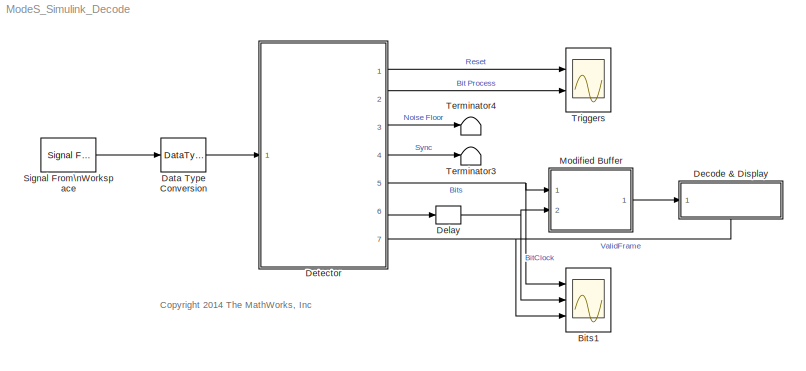
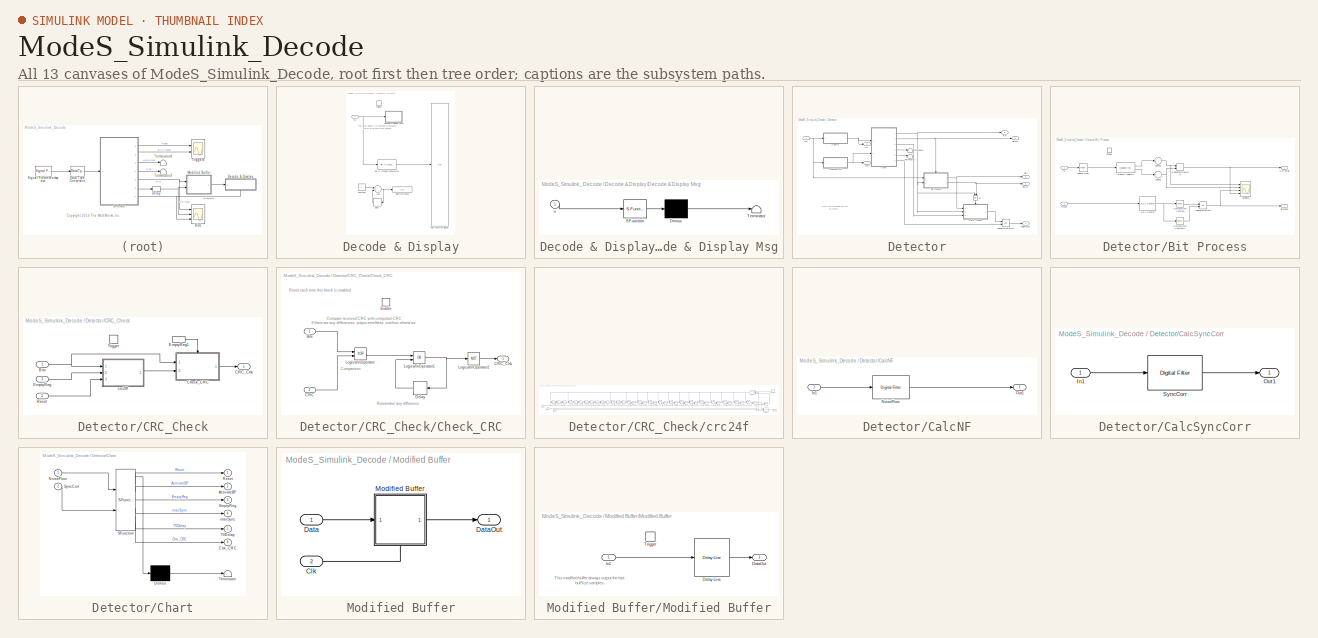
[diagram: thumbnail index - all 13 canvases of the model, root first then tree order]
MODEL ModeS_Simulink_Decode
KIND model
CONFIG PreLoadFcn = load data_Yb\nDataIn = Yb_with_time(:,2);\nWL=14;\n
BLOCK [Scope] Bits1
  Floating = off
  NumInputPorts = 3
  Ports = [3]
  SID = 125
  ScopeSpecificationString = C++SS(StrPVP('Location','[451, 237, 1357, 757]'),StrPVP('Open','off'),StrPVP('ZoomMode','xonly'),MxPVP('AxesTitles',54,'struct(''axes1'',''%<SignalLabel>'',''axes2'',''%<SignalLabel>'',''axes3'',''%<SignalLabel>'')'),MxPVP('ScopeGraphics',57,'struct(''FigureColor'',''[0.501960784313725 0.501960784313725 0.501960784313725]'',''AxesColor'',''[0 0 0]'',''AxesTickColor'',''[1 1 1]'',''LineColors'',''[...<+433ch>
BLOCK [DataTypeConversion] Data Type Conversion
  LockScale = on
  OutDataTypeStr = double
  RndMeth = Floor
  SID = 147
  SaturateOnIntegerOverflow = off
BLOCK [SubSystem] Decode & Display
  Ports = [1, 0, 0, 1]
  RequestExecContextInheritance = off
  SID = 233
BLOCK [Sum] Decode & Display/Add
  InputSameDT = off
  OutDataTypeStr = Inherit: Inherit via internal rule
  Ports = [2, 1]
  SID = 294
  SaturateOnIntegerOverflow = off
BLOCK [Reference] Decode & Display/Bit to Integer\nConverter  REF=commutil2/Bit to Integer\nConverter
  Ports = [1, 1]
  SID = 305
  SourceBlock = commutil2/Bit to Integer\nConverter
  SourceProductBaseCode = CM
  SourceProductName = Communications Toolbox
  SourceType = Bit to Integer Converter
  bitOrder = MSB first
  nbits = 4
  outDtype = Inherit via internal rule
  outDtypeSigned = Inherit via internal rule
  signedOutputValues = Unsigned
BLOCK [Constant] Decode & Display/Constant
  SID = 296
BLOCK [SubSystem] Decode & Display/Decode & Display Msg
  ErrorFcn = Stateflow.Translate.translate
  PermitHierarchicalResolution = ExplicitOnly
  Ports = [1]
  RequestExecContextInheritance = off
  SFBlockType = MATLAB Function
  SID = 300
  TreatAsAtomicUnit = on
BLOCK [Demux] Decode & Display/Decode & Display Msg/ Demux 
  Outputs = 1
  Ports = [1, 1]
  SID = 300::33
BLOCK [S-Function] Decode & Display/Decode & Display Msg/ SFunction 
  EnableBusSupport = off
  FunctionName = sf_sfun
  PortCounts = [1 1]
  Ports = [1, 1]
  SFcnIsStateOwnerBlock = off
  SFunctionDeploymentMode = off
  SID = 300::32
  Tag = Stateflow S-Function 2
BLOCK [Terminator] Decode & Display/Decode & Display Msg/ Terminator 
  SID = 300::34
BLOCK [Inport] Decode & Display/Decode & Display Msg/u
  IconDisplay = Port number
  SID = 300::1
BLOCK [Delay] Decode & Display/Delay
  DelayLength = 1
  InputPortMap = u0
  Ports = [1, 1]
  SID = 295
BLOCK [Display] Decode & Display/HEX raw msg display
  Decimation = 1
  Format = hex (Stored Integer)
  Ports = [1]
  SID = 306
BLOCK [Inport] Decode & Display/In1
  IconDisplay = Port number
  SID = 234
BLOCK [TriggerPort] Decode & Display/Trigger
  Ports = []
  SID = 237
  StatesWhenEnabling = held
  VariantControl = Variant
BLOCK [Display] Decode & Display/Valid Msg Count
  Decimation = 1
  Ports = [1]
  SID = 297
BLOCK [Delay] Delay
  DelayLength = 1
  InputPortMap = u0
  Ports = [1, 1]
  SID = 304
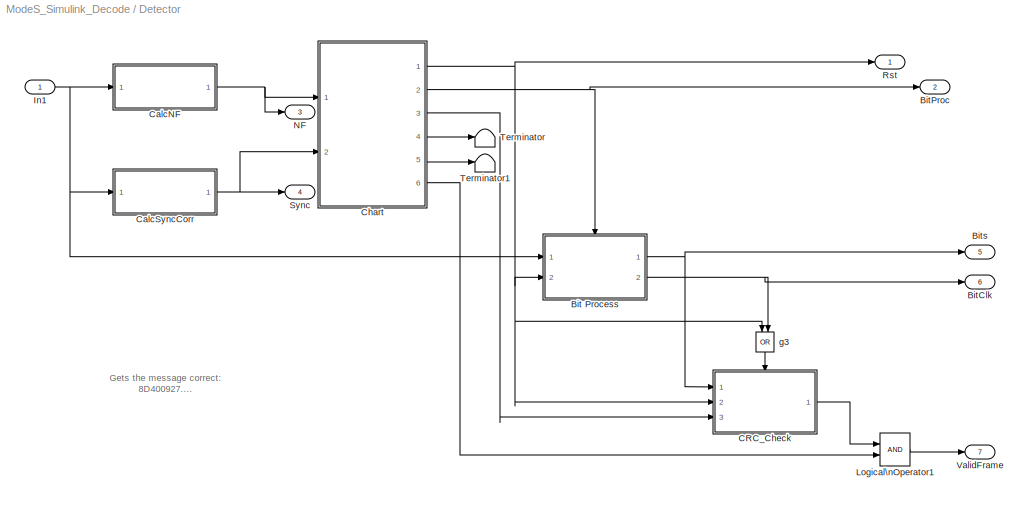
BLOCK [SubSystem] Detector
  Ports = [1, 7]
  RequestExecContextInheritance = off
  SID = 167
BLOCK [SubSystem] Detector/Bit Process
  Ports = [2, 2, 1]
  RequestExecContextInheritance = off
  SID = 103
  TreatAsAtomicUnit = on
BLOCK [Outport] Detector/Bit Process/BitTrigger
  IconDisplay = Port number
  InitialOutput = 0
  Port = 2
  SID = 132
BLOCK [Reference] Detector/Bit Process/Compare\nTo Constant  REF=simulink/Logic and Bit\nOperations/Compare\nTo Constant
  OutDataTypeStr = boolean
  Ports = [1, 1]
  SID = 107
  SourceBlock = simulink/Logic and Bit\nOperations/Compare\nTo Constant
  SourceProductBaseCode = SL
  SourceProductName = Simulink
  SourceType = Compare To Constant
  ZeroCross = on
  const = 12
  relop = ==
BLOCK [Reference] Detector/Bit Process/Compare\nTo Constant1  REF=simulink/Logic and Bit\nOperations/Compare\nTo Constant
  OutDataTypeStr = boolean
  Ports = [1, 1]
  SID = 108
  SourceBlock = simulink/Logic and Bit\nOperations/Compare\nTo Constant
  SourceProductBaseCode = SL
  SourceProductName = Simulink
  SourceType = Compare To Constant
  ZeroCross = on
  const = 25
  relop = ==
BLOCK [Outport] Detector/Bit Process/CurrentBit
  IconDisplay = Port number
  InitialOutput = 0
  SID = 120
BLOCK [EnablePort] Detector/Bit Process/Enable
  Ports = []
  SID = 106
BLOCK [Reference] Detector/Bit Process/HDL Counter  REF=hdlsllib/HDL Operations/HDL Counter
  CountDataType = Unsigned
  CountDirPort = off
  CountEnbPort = off
  CountFracLen = 0
  CountFrom = 1
  CountFromType = Initial value
  CountInit = 1
  CountLoadPort = off
  CountMax = 25
  CountResetPort = on
  CountSampTime = 1
  CountStep = 1
  CountType = Count limited
  CountWordLen = 8
  Ports = [1, 1]
  SID = 109
  SourceBlock = hdlsllib/HDL Operations/HDL Counter
  SourceProductBaseCode = SL
  SourceProductName = Simulink
  SourceType = HDL Counter
BLOCK [Inport] Detector/Bit Process/In1
  IconDisplay = Port number
  SID = 104
BLOCK [Sum] Detector/Bit Process/Logical0
  AccumDataTypeStr = double
  InputSameDT = off
  Inputs = +
  OutDataTypeStr = Inherit: Same as accumulator
  Ports = [1, 1]
  SID = 111
  SaturateOnIntegerOverflow = off
BLOCK [Sum] Detector/Bit Process/Logical1
  AccumDataTypeStr = double
  InputSameDT = off
  Inputs = +
  OutDataTypeStr = Inherit: Same as accumulator
  Ports = [1, 1]
  SID = 112
  SaturateOnIntegerOverflow = off
BLOCK [Logic] Detector/Bit Process/Logical\nOperator
  AllPortsSameDT = off
  Operator = OR
  OutDataTypeStr = boolean
  Ports = [2, 1]
  SID = 110
BLOCK [Reference] Detector/Bit Process/Multiport\nSelector  REF=dspindex/Multiport\nSelector
  Ports = [1, 2]
  SID = 113
  SourceBlock = dspindex/Multiport\nSelector
  SourceProductBaseCode = DS
  SourceProductName = DSP System Toolbox
  SourceType = Multiport Selector
  idxCellArray = { 1:6,7:12}
  idxErrMode = Clip Index
  rowsOrCols = Rows
BLOCK [RelationalOperator] Detector/Bit Process/Relational\nOperator
  InputSameDT = off
  Operator = >
  OutDataTypeStr = boolean
  Ports = [2, 1]
  SID = 114
BLOCK [Inport] Detector/Bit Process/Reset
  IconDisplay = Port number
  Port = 2
  SID = 105
BLOCK [Reference] Detector/Bit Process/Tapped Delay  REF=simulink/Discrete/Tapped Delay
  DelayOrder = Oldest
  NumDelays = 12
  Ports = [1, 1]
  SID = 119
  SourceBlock = simulink/Discrete/Tapped Delay
  SourceProductBaseCode = SL
  SourceProductName = Simulink
  SourceType = Tapped Delay Line
  includeCurrent = on
  samptime = 1
  vinit = 0.0
BLOCK [Scope] Detector/Bit Process/decisions
  Floating = off
  NumInputPorts = 4
  Ports = [4]
  SID = 138
  ScopeSpecificationString = C++SS(StrPVP('Location','[49, 532, 1722, 1128]'),StrPVP('Open','off'),StrPVP('ZoomMode','xonly'),MxPVP('AxesTitles',54,'struct(''axes1'',''%<SignalLabel>'',''axes2'',''%<SignalLabel>'',''axes3'',''%<SignalLabel>'',''axes4'',''%<SignalLabel>'')'),MxPVP('ScopeGraphics',57,'struct(''FigureColor'',''[0.5 0.5 0.5]'',''AxesColor'',''[0 0 0]'',''AxesTickColor'',''[1 1 1]'',''LineColors'',''[1 1 0;1 0 1;0...<+413ch>
BLOCK [Outport] Detector/BitClk
  IconDisplay = Port number
  Port = 6
  SID = 400
BLOCK [Outport] Detector/BitProc
  IconDisplay = Port number
  Port = 2
  SID = 170
BLOCK [Outport] Detector/Bits
  IconDisplay = Port number
  Port = 5
  SID = 399
BLOCK [SubSystem] Detector/CRC_Check
  Ports = [3, 1, 0, 1]
  RequestExecContextInheritance = off
  SID = 19
BLOCK [Inport] Detector/CRC_Check/Bits
  IconDisplay = Port number
  SID = 20
BLOCK [Outport] Detector/CRC_Check/CRC_Chk
  IconDisplay = Port number
  SID = 124
BLOCK [SubSystem] Detector/CRC_Check/Check_CRC
  Ports = [2, 1, 1]
  RequestExecContextInheritance = off
  SID = 315
  TreatAsAtomicUnit = on
BLOCK [Inport] Detector/CRC_Check/Check_CRC/Bits
  IconDisplay = Port number
  SID = 316
BLOCK [Inport] Detector/CRC_Check/Check_CRC/CRC
  IconDisplay = Port number
  Port = 2
  SID = 317
BLOCK [Outport] Detector/CRC_Check/Check_CRC/CRC_Chk
  IconDisplay = Port number
  InitialOutput = 0
  SID = 324
BLOCK [Delay] Detector/CRC_Check/Check_CRC/Delay
  DelayLength = 1
  InputPortMap = u0
  Ports = [1, 1]
  SID = 320
BLOCK [EnablePort] Detector/CRC_Check/Check_CRC/Enable
  Ports = []
  SID = 318
  StatesWhenEnabling = reset
BLOCK [Logic] Detector/CRC_Check/Check_CRC/Logical\nOperator
  AllPortsSameDT = off
  Operator = XOR
  OutDataTypeStr = boolean
  Ports = [2, 1]
  SID = 321
BLOCK [Logic] Detector/CRC_Check/Check_CRC/Logical\nOperator1
  AllPortsSameDT = off
  Operator = OR
  OutDataTypeStr = boolean
  Ports = [2, 1]
  SID = 322
BLOCK [Logic] Detector/CRC_Check/Check_CRC/Logical\nOperator2
  AllPortsSameDT = off
  Operator = NOT
  OutDataTypeStr = boolean
  Ports = [1, 1]
  SID = 323
BLOCK [Inport] Detector/CRC_Check/EmptyReg
  IconDisplay = Port number
  Port = 3
  SID = 22
BLOCK [InportShadow] Detector/CRC_Check/EmptyReg1
  IconDisplay = Port number
  Port = 3
  SID = 329
BLOCK [Inport] Detector/CRC_Check/Reset
  IconDisplay = Port number
  Port = 2
  SID = 23
BLOCK [TriggerPort] Detector/CRC_Check/Trigger
  Ports = []
  SID = 131
  StatesWhenEnabling = held
  VariantControl = Variant
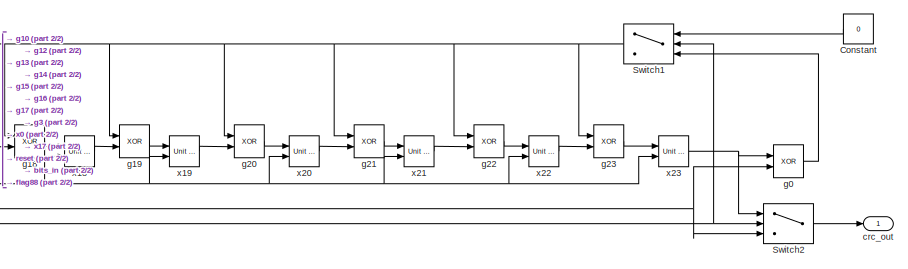
[diagram: Detector/CRC_Check/crc24f - part 1/2, right side, full height]
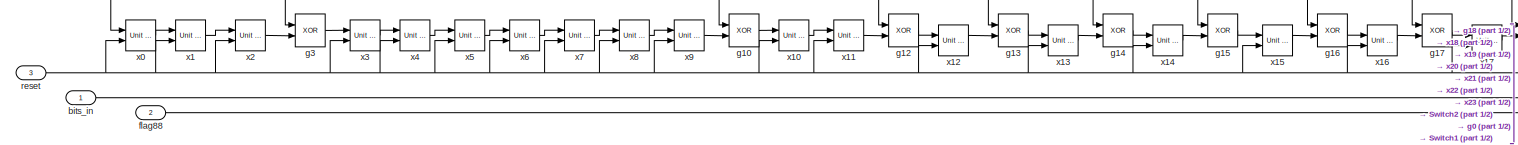
[diagram: Detector/CRC_Check/crc24f - part 2/2, bottom left region]
BLOCK [SubSystem] Detector/CRC_Check/crc24f
  Ports = [3, 1]
  RequestExecContextInheritance = off
  SID = 27
BLOCK [Constant] Detector/CRC_Check/crc24f/Constant
  OutDataTypeStr = boolean
  SID = 30
  SampleTime = -1
  Value = 0
BLOCK [Switch] Detector/CRC_Check/crc24f/Switch1
  Criteria = u2 > Threshold
  InputSameDT = off
  SID = 31
  SaturateOnIntegerOverflow = off
  Threshold = 0.5
BLOCK [Switch] Detector/CRC_Check/crc24f/Switch2
  Criteria = u2 > Threshold
  InputSameDT = off
  SID = 32
  SaturateOnIntegerOverflow = off
  Threshold = 0.5
BLOCK [Inport] Detector/CRC_Check/crc24f/bits_in
  IconDisplay = Port number
  SID = 28
BLOCK [Outport] Detector/CRC_Check/crc24f/crc_out
  IconDisplay = Port number
  SID = 72
BLOCK [Inport] Detector/CRC_Check/crc24f/flag88
  IconDisplay = Port number
  Port = 2
  SID = 29
BLOCK [Logic] Detector/CRC_Check/crc24f/g0
  AllPortsSameDT = off
  Operator = XOR
  OutDataTypeStr = boolean
  Ports = [2, 1]
  SID = 33
BLOCK [Logic] Detector/CRC_Check/crc24f/g10
  AllPortsSameDT = off
  Operator = XOR
  OutDataTypeStr = boolean
  Ports = [2, 1]
  SID = 34
BLOCK [Logic] Detector/CRC_Check/crc24f/g12
  AllPortsSameDT = off
  Operator = XOR
  OutDataTypeStr = boolean
  Ports = [2, 1]
  SID = 35
BLOCK [Logic] Detector/CRC_Check/crc24f/g13
  AllPortsSameDT = off
  Operator = XOR
  OutDataTypeStr = boolean
  Ports = [2, 1]
  SID = 36
BLOCK [Logic] Detector/CRC_Check/crc24f/g14
  AllPortsSameDT = off
  Operator = XOR
  OutDataTypeStr = boolean
  Ports = [2, 1]
  SID = 37
BLOCK [Logic] Detector/CRC_Check/crc24f/g15
  AllPortsSameDT = off
  Operator = XOR
  OutDataTypeStr = boolean
  Ports = [2, 1]
  SID = 38
BLOCK [Logic] Detector/CRC_Check/crc24f/g16
  AllPortsSameDT = off
  Operator = XOR
  OutDataTypeStr = boolean
  Ports = [2, 1]
  SID = 39
BLOCK [Logic] Detector/CRC_Check/crc24f/g17
  AllPortsSameDT = off
  Operator = XOR
  OutDataTypeStr = boolean
  Ports = [2, 1]
  SID = 40
BLOCK [Logic] Detector/CRC_Check/crc24f/g18
  AllPortsSameDT = off
  Operator = XOR
  OutDataTypeStr = boolean
  Ports = [2, 1]
  SID = 41
BLOCK [Logic] Detector/CRC_Check/crc24f/g19
  AllPortsSameDT = off
  Operator = XOR
  OutDataTypeStr = boolean
  Ports = [2, 1]
  SID = 42
BLOCK [Logic] Detector/CRC_Check/crc24f/g20
  AllPortsSameDT = off
  Operator = XOR
  OutDataTypeStr = boolean
  Ports = [2, 1]
  SID = 43
BLOCK [Logic] Detector/CRC_Check/crc24f/g21
  AllPortsSameDT = off
  Operator = XOR
  OutDataTypeStr = boolean
  Ports = [2, 1]
  SID = 44
BLOCK [Logic] Detector/CRC_Check/crc24f/g22
  AllPortsSameDT = off
  Operator = XOR
  OutDataTypeStr = boolean
  Ports = [2, 1]
  SID = 45
BLOCK [Logic] Detector/CRC_Check/crc24f/g23
  AllPortsSameDT = off
  Operator = XOR
  OutDataTypeStr = boolean
  Ports = [2, 1]
  SID = 46
BLOCK [Logic] Detector/CRC_Check/crc24f/g3
  AllPortsSameDT = off
  Operator = XOR
  OutDataTypeStr = boolean
  Ports = [2, 1]
  SID = 47
BLOCK [Inport] Detector/CRC_Check/crc24f/reset
  IconDisplay = Port number
  Port = 3
  SID = 73
BLOCK [Reference] Detector/CRC_Check/crc24f/x0  REF=simulink_need_slupdate/Unit Delay\nResettable
  Ports = [2, 1]
  SID = 74
  SourceBlock = simulink_need_slupdate/Unit Delay\nResettable
  SourceProductBaseCode = SL
  SourceProductName = Simulink
  SourceType = Unit Delay Resettable
  tsamp = -1
  vinit = 0.0
BLOCK [Reference] Detector/CRC_Check/crc24f/x1  REF=simulink_need_slupdate/Unit Delay\nResettable
  Ports = [2, 1]
  SID = 75
  SourceBlock = simulink_need_slupdate/Unit Delay\nResettable
  SourceProductBaseCode = SL
  SourceProductName = Simulink
  SourceType = Unit Delay Resettable
  tsamp = -1
  vinit = 0.0
BLOCK [Reference] Detector/CRC_Check/crc24f/x10  REF=simulink_need_slupdate/Unit Delay\nResettable
  Ports = [2, 1]
  SID = 84
  SourceBlock = simulink_need_slupdate/Unit Delay\nResettable
  SourceProductBaseCode = SL
  SourceProductName = Simulink
  SourceType = Unit Delay Resettable
  tsamp = -1
  vinit = 0.0
BLOCK [Reference] Detector/CRC_Check/crc24f/x11  REF=simulink_need_slupdate/Unit Delay\nResettable
  Ports = [2, 1]
  SID = 85
  SourceBlock = simulink_need_slupdate/Unit Delay\nResettable
  SourceProductBaseCode = SL
  SourceProductName = Simulink
  SourceType = Unit Delay Resettable
  tsamp = -1
  vinit = 0.0
BLOCK [Reference] Detector/CRC_Check/crc24f/x12  REF=simulink_need_slupdate/Unit Delay\nResettable
  Ports = [2, 1]
  SID = 86
  SourceBlock = simulink_need_slupdate/Unit Delay\nResettable
  SourceProductBaseCode = SL
  SourceProductName = Simulink
  SourceType = Unit Delay Resettable
  tsamp = -1
  vinit = 0.0
BLOCK [Reference] Detector/CRC_Check/crc24f/x13  REF=simulink_need_slupdate/Unit Delay\nResettable
  Ports = [2, 1]
  SID = 87
  SourceBlock = simulink_need_slupdate/Unit Delay\nResettable
  SourceProductBaseCode = SL
  SourceProductName = Simulink
  SourceType = Unit Delay Resettable
  tsamp = -1
  vinit = 0.0
BLOCK [Reference] Detector/CRC_Check/crc24f/x14  REF=simulink_need_slupdate/Unit Delay\nResettable
  Ports = [2, 1]
  SID = 88
  SourceBlock = simulink_need_slupdate/Unit Delay\nResettable
  SourceProductBaseCode = SL
  SourceProductName = Simulink
  SourceType = Unit Delay Resettable
  tsamp = -1
  vinit = 0.0
BLOCK [Reference] Detector/CRC_Check/crc24f/x15  REF=simulink_need_slupdate/Unit Delay\nResettable
  Ports = [2, 1]
  SID = 89
  SourceBlock = simulink_need_slupdate/Unit Delay\nResettable
  SourceProductBaseCode = SL
  SourceProductName = Simulink
  SourceType = Unit Delay Resettable
  tsamp = -1
  vinit = 0.0
BLOCK [Reference] Detector/CRC_Check/crc24f/x16  REF=simulink_need_slupdate/Unit Delay\nResettable
  Ports = [2, 1]
  SID = 90
  SourceBlock = simulink_need_slupdate/Unit Delay\nResettable
  SourceProductBaseCode = SL
  SourceProductName = Simulink
  SourceType = Unit Delay Resettable
  tsamp = -1
  vinit = 0.0
BLOCK [Reference] Detector/CRC_Check/crc24f/x17  REF=simulink_need_slupdate/Unit Delay\nResettable
  Ports = [2, 1]
  SID = 91
  SourceBlock = simulink_need_slupdate/Unit Delay\nResettable
  SourceProductBaseCode = SL
  SourceProductName = Simulink
  SourceType = Unit Delay Resettable
  tsamp = -1
  vinit = 0.0
BLOCK [Reference] Detector/CRC_Check/crc24f/x18  REF=simulink_need_slupdate/Unit Delay\nResettable
  Ports = [2, 1]
  SID = 92
  SourceBlock = simulink_need_slupdate/Unit Delay\nResettable
  SourceProductBaseCode = SL
  SourceProductName = Simulink
  SourceType = Unit Delay Resettable
  tsamp = -1
  vinit = 0.0
BLOCK [Reference] Detector/CRC_Check/crc24f/x19  REF=simulink_need_slupdate/Unit Delay\nResettable
  Ports = [2, 1]
  SID = 93
  SourceBlock = simulink_need_slupdate/Unit Delay\nResettable
  SourceProductBaseCode = SL
  SourceProductName = Simulink
  SourceType = Unit Delay Resettable
  tsamp = -1
  vinit = 0.0
BLOCK [Reference] Detector/CRC_Check/crc24f/x2  REF=simulink_need_slupdate/Unit Delay\nResettable
  Ports = [2, 1]
  SID = 76
  SourceBlock = simulink_need_slupdate/Unit Delay\nResettable
  SourceProductBaseCode = SL
  SourceProductName = Simulink
  SourceType = Unit Delay Resettable
  tsamp = -1
  vinit = 0.0
BLOCK [Reference] Detector/CRC_Check/crc24f/x20  REF=simulink_need_slupdate/Unit Delay\nResettable
  Ports = [2, 1]
  SID = 94
  SourceBlock = simulink_need_slupdate/Unit Delay\nResettable
  SourceProductBaseCode = SL
  SourceProductName = Simulink
  SourceType = Unit Delay Resettable
  tsamp = -1
  vinit = 0.0
BLOCK [Reference] Detector/CRC_Check/crc24f/x21  REF=simulink_need_slupdate/Unit Delay\nResettable
  Ports = [2, 1]
  SID = 95
  SourceBlock = simulink_need_slupdate/Unit Delay\nResettable
  SourceProductBaseCode = SL
  SourceProductName = Simulink
  SourceType = Unit Delay Resettable
  tsamp = -1
  vinit = 0.0
BLOCK [Reference] Detector/CRC_Check/crc24f/x22  REF=simulink_need_slupdate/Unit Delay\nResettable
  Ports = [2, 1]
  SID = 96
  SourceBlock = simulink_need_slupdate/Unit Delay\nResettable
  SourceProductBaseCode = SL
  SourceProductName = Simulink
  SourceType = Unit Delay Resettable
  tsamp = -1
  vinit = 0.0
BLOCK [Reference] Detector/CRC_Check/crc24f/x23  REF=simulink_need_slupdate/Unit Delay\nResettable
  Ports = [2, 1]
  SID = 97
  SourceBlock = simulink_need_slupdate/Unit Delay\nResettable
  SourceProductBaseCode = SL
  SourceProductName = Simulink
  SourceType = Unit Delay Resettable
  tsamp = -1
  vinit = 0.0
BLOCK [Reference] Detector/CRC_Check/crc24f/x3  REF=simulink_need_slupdate/Unit Delay\nResettable
  Ports = [2, 1]
  SID = 77
  SourceBlock = simulink_need_slupdate/Unit Delay\nResettable
  SourceProductBaseCode = SL
  SourceProductName = Simulink
  SourceType = Unit Delay Resettable
  tsamp = -1
  vinit = 0.0
BLOCK [Reference] Detector/CRC_Check/crc24f/x4  REF=simulink_need_slupdate/Unit Delay\nResettable
  Ports = [2, 1]
  SID = 78
  SourceBlock = simulink_need_slupdate/Unit Delay\nResettable
  SourceProductBaseCode = SL
  SourceProductName = Simulink
  SourceType = Unit Delay Resettable
  tsamp = -1
  vinit = 0.0
BLOCK [Reference] Detector/CRC_Check/crc24f/x5  REF=simulink_need_slupdate/Unit Delay\nResettable
  Ports = [2, 1]
  SID = 79
  SourceBlock = simulink_need_slupdate/Unit Delay\nResettable
  SourceProductBaseCode = SL
  SourceProductName = Simulink
  SourceType = Unit Delay Resettable
  tsamp = -1
  vinit = 0.0
BLOCK [Reference] Detector/CRC_Check/crc24f/x6  REF=simulink_need_slupdate/Unit Delay\nResettable
  Ports = [2, 1]
  SID = 80
  SourceBlock = simulink_need_slupdate/Unit Delay\nResettable
  SourceProductBaseCode = SL
  SourceProductName = Simulink
  SourceType = Unit Delay Resettable
  tsamp = -1
  vinit = 0.0
BLOCK [Reference] Detector/CRC_Check/crc24f/x7  REF=simulink_need_slupdate/Unit Delay\nResettable
  Ports = [2, 1]
  SID = 81
  SourceBlock = simulink_need_slupdate/Unit Delay\nResettable
  SourceProductBaseCode = SL
  SourceProductName = Simulink
  SourceType = Unit Delay Resettable
  tsamp = -1
  vinit = 0.0
BLOCK [Reference] Detector/CRC_Check/crc24f/x8  REF=simulink_need_slupdate/Unit Delay\nResettable
  Ports = [2, 1]
  SID = 82
  SourceBlock = simulink_need_slupdate/Unit Delay\nResettable
  SourceProductBaseCode = SL
  SourceProductName = Simulink
  SourceType = Unit Delay Resettable
  tsamp = -1
  vinit = 0.0
BLOCK [Reference] Detector/CRC_Check/crc24f/x9  REF=simulink_need_slupdate/Unit Delay\nResettable
  Ports = [2, 1]
  SID = 83
  SourceBlock = simulink_need_slupdate/Unit Delay\nResettable
  SourceProductBaseCode = SL
  SourceProductName = Simulink
  SourceType = Unit Delay Resettable
  tsamp = -1
  vinit = 0.0
BLOCK [SubSystem] Detector/CalcNF
  Ports = [1, 1]
  RequestExecContextInheritance = off
  SID = 3
BLOCK [Inport] Detector/CalcNF/In1
  IconDisplay = Port number
  SID = 4
BLOCK [Reference] Detector/CalcNF/NoiseFloor  REF=dspobslib/Digital Filter
  AllPoleFiltStruct = Direct form
  BiQuadCoeffs = [1 0.3 0.4 1 0.1 0.2]
  CoeffSource = Specify via dialog
  DenCoeffs = [1 0.1]
  FIRFiltStruct = Direct form transposed
  FiltPerSampPopup = One filter per frame
  FilterSource = Specify via dialog
  IC = 0
  ICden = 0
  ICnum = 0
  IIRFiltStruct = Direct form II transposed
  InputProcessing = Columns as channels (frame based)
  LatticeCoeffs = [0.2 0.4]
  LockScale = off
  NumCoeffs = (ones(64,1)/64)
  Ports = [1, 1]
  SID = 122
  ScaleValues = 1
  SourceBlock = dspobslib/Digital Filter
  SourceProductBaseCode = DS
  SourceProductName = DSP System Toolbox
  SourceType = Digital Filter
  TypePopup = FIR (all zeros)
  UserData = DataTag0
  UserDataPersistent = on
  accumFracLength = 2*WL + 8
  accumMode = Binary point scaling
  accumWordLength = 2*WL
  additionalParams = off
  allowOverrides = on
  denIgnore = on
  dfiltObjectName = dfilt.dffir([1 2 1])
  firstCoeffFracLength = WL + 4
  firstCoeffMode = Binary point scaling
  firstCoeffWordLength = WL
  memoryFracLength = 15
  memoryMode = Same as accumulator
  memoryWordLength = 16
  multiplicandFracLength = 30
  multiplicandMode = Same as output
  multiplicandWordLength = 32
  outputFracLength = WL + 8
  outputMode = Binary point scaling
  outputWordLength = WL
  overflowMode = off
  prodOutputFracLength = 2*WL + 14
  prodOutputMode = Binary point scaling
  prodOutputWordLength = 2*WL
  roundingMode = Floor
  scaleValueFracLength = 14
  secondCoeffFracLength = 15
  secondCoeffMode = Same as numerator
  secondCoeffWordLength = 16
  showAcc = off
  showCoeff = off
  showMem = off
  showMpy = off
  showOut = off
  stageIOMode = Same as input
  stageIOWordLength = 16
  stageInFracLength = 15
  stageOutFracLength = 15
  tapSumFracLength = 30
  tapSumMode = Same as input
  tapSumWordLength = 32
  thirdCoeffFracLength = 15
  thirdCoeffMode = Same as input
  thirdCoeffWordLength = 16
BLOCK [Outport] Detector/CalcNF/Out1
  IconDisplay = Port number
  SID = 5
BLOCK [SubSystem] Detector/CalcSyncCorr
  Ports = [1, 1]
  RequestExecContextInheritance = off
  SID = 6
BLOCK [Inport] Detector/CalcSyncCorr/In1
  IconDisplay = Port number
  SID = 7
BLOCK [Outport] Detector/CalcSyncCorr/Out1
  IconDisplay = Port number
  SID = 8
BLOCK [Reference] Detector/CalcSyncCorr/SyncCorr  REF=dspobslib/Digital Filter
  AllPoleFiltStruct = Direct form
  BiQuadCoeffs = [1 0.3 0.4 1 0.1 0.2]
  CoeffSource = Specify via dialog
  DenCoeffs = [1 0.1]
  FIRFiltStruct = Direct form
  FiltPerSampPopup = One filter per frame
  FilterSource = Specify via dialog
  IC = 0
  ICden = 0
  ICnum = 0
  IIRFiltStruct = Direct form II transposed
  InputProcessing = Columns as channels (frame based)
  LatticeCoeffs = [0.2 0.4]
  LockScale = off
  NumCoeffs = flipud([ones(6,1);-1*ones(6,1);ones(6,1);-1*ones(7,1);\n-1*ones(6,1);-1*ones(6,1);-1*ones(6,1);ones(7,1);-1*ones(6,1);ones(6,1);-1*ones(6,1);-1*ones(7,1)])
  Ports = [1, 1]
  SID = 123
  ScaleValues = 1
  SourceBlock = dspobslib/Digital Filter
  SourceProductBaseCode = DS
  SourceProductName = DSP System Toolbox
  SourceType = Digital Filter
  TypePopup = FIR (all zeros)
  UserData = DataTag1
  UserDataPersistent = on
  accumFracLength = 2*WL + 4
  accumMode = Binary point scaling
  accumWordLength = 2*WL
  additionalParams = off
  allowOverrides = on
  denIgnore = on
  dfiltObjectName = dfilt.dffir([1 2 1])
  firstCoeffFracLength = WL - 2
  firstCoeffMode = Binary point scaling
  firstCoeffWordLength = WL
  memoryFracLength = 15
  memoryMode = Same as accumulator
  memoryWordLength = 16
  multiplicandFracLength = 30
  multiplicandMode = Same as output
  multiplicandWordLength = 32
  outputFracLength = WL + 4
  outputMode = Binary point scaling
  outputWordLength = WL
  overflowMode = off
  prodOutputFracLength = 2*WL + 8
  prodOutputMode = Binary point scaling
  prodOutputWordLength = 2*WL
  roundingMode = Floor
  scaleValueFracLength = 14
  secondCoeffFracLength = 15
  secondCoeffMode = Same as numerator
  secondCoeffWordLength = 16
  showAcc = off
  showCoeff = off
  showMem = off
  showMpy = off
  showOut = off
  stageIOMode = Same as input
  stageIOWordLength = 16
  stageInFracLength = 15
  stageOutFracLength = 15
  tapSumFracLength = 30
  tapSumMode = Same as input
  tapSumWordLength = 32
  thirdCoeffFracLength = 15
  thirdCoeffMode = Same as input
  thirdCoeffWordLength = 16
BLOCK [SubSystem] Detector/Chart
  ErrorFcn = Stateflow.Translate.translate
  PermitHierarchicalResolution = ExplicitOnly
  Ports = [2, 6]
  RequestExecContextInheritance = off
  SFBlockType = Chart
  SID = 98
  TreatAsAtomicUnit = on
BLOCK [Demux] Detector/Chart/ Demux 
  Outputs = 1
  Ports = [1, 1]
  SID = 98::44
BLOCK [S-Function] Detector/Chart/ SFunction 
  EnableBusSupport = off
  FunctionName = sf_sfun
  PortCounts = [2 7]
  Ports = [2, 7]
  SFcnIsStateOwnerBlock = off
  SFunctionDeploymentMode = off
  SID = 98::43
  Tag = Stateflow S-Function 1
BLOCK [Terminator] Detector/Chart/ Terminator 
  SID = 98::45
BLOCK [Outport] Detector/Chart/ActivateBP
  IconDisplay = Port number
  Port = 2
  SID = 98::20
BLOCK [Outport] Detector/Chart/Chk_CRC
  IconDisplay = Port number
  Port = 6
  SID = 98::33
BLOCK [Outport] Detector/Chart/EmptyReg
  IconDisplay = Port number
  Port = 3
  SID = 98::21
BLOCK [Inport] Detector/Chart/NoiseFloor
  IconDisplay = Port number
  SID = 98::17
BLOCK [Outport] Detector/Chart/Reset
  IconDisplay = Port number
  SID = 98::19
BLOCK [Inport] Detector/Chart/SyncCorr
  IconDisplay = Port number
  Port = 2
  SID = 98::18
BLOCK [Outport] Detector/Chart/T0Delay
  IconDisplay = Port number
  Port = 5
  SID = 98::24
BLOCK [Outport] Detector/Chart/maxSync
  IconDisplay = Port number
  Port = 4
  SID = 98::23
BLOCK [Inport] Detector/In1
  IconDisplay = Port number
  SID = 169
BLOCK [Logic] Detector/Logical\nOperator1
  AllPortsSameDT = off
  OutDataTypeStr = boolean
  Ports = [2, 1]
  SID = 214
BLOCK [Outport] Detector/NF
  IconDisplay = Port number
  Port = 3
  SID = 175
BLOCK [Outport] Detector/Rst
  IconDisplay = Port number
  SID = 168
BLOCK [Outport] Detector/Sync
  IconDisplay = Port number
  Port = 4
  SID = 176
BLOCK [Terminator] Detector/Terminator
  SID = 155
BLOCK [Terminator] Detector/Terminator1
  SID = 156
BLOCK [Outport] Detector/ValidFrame
  IconDisplay = Port number
  Port = 7
  SID = 207
BLOCK [Logic] Detector/g3
  AllPortsSameDT = off
  Operator = OR
  OutDataTypeStr = boolean
  Ports = [2, 1]
  SID = 144
BLOCK [SubSystem] Modified Buffer
  Ports = [2, 1]
  RequestExecContextInheritance = off
  SID = 217
  TreatAsAtomicUnit = on
BLOCK [Inport] Modified Buffer/Clk
  IconDisplay = Port number
  Port = 2
  SID = 219
BLOCK [Inport] Modified Buffer/Data
  IconDisplay = Port number
  SID = 218
BLOCK [Outport] Modified Buffer/DataOut
  IconDisplay = Port number
  SID = 229
BLOCK [SubSystem] Modified Buffer/Modified Buffer
  Ports = [1, 1, 0, 1]
  RequestExecContextInheritance = off
  SID = 221
BLOCK [Outport] Modified Buffer/Modified Buffer/DataOut
  IconDisplay = Port number
  SID = 227
BLOCK [Reference] Modified Buffer/Modified Buffer/Delay Line  REF=dspbuff3/Delay Line
  OutputFrames = on
  Ports = [1, 1]
  SID = 226
  SourceBlock = dspbuff3/Delay Line
  SourceProductBaseCode = DS
  SourceProductName = DSP System Toolbox
  SourceType = Delay Line
  TreatMby1Signals = One channel
  UserData = DataTag2
  UserDataPersistent = on
  directfeed = on
  enable_output = off
  hold_output = off
  ic = 0
  siz = bufSize
BLOCK [Inport] Modified Buffer/Modified Buffer/In1
  IconDisplay = Port number
  SID = 222
BLOCK [TriggerPort] Modified Buffer/Modified Buffer/Trigger
  Ports = []
  SID = 299
  StatesWhenEnabling = held
  VariantControl = Variant
BLOCK [Reference] Signal From\nWorkspace  REF=dspsrcs4/Signal From\nWorkspace
  OutputAfterFinalValue = Setting to zero
  OutputFrames = on
  Ports = [0, 1]
  SID = 126
  SourceBlock = dspsrcs4/Signal From\nWorkspace
  SourceProductBaseCode = DS
  SourceProductName = DSP System Toolbox
  SourceType = Signal From Workspace
  Ts = 1
  X = DataIn
  ignoreOrWarnInputAndFrameLengths = off
  nsamps = 1
BLOCK [Terminator] Terminator3
  SID = 401
BLOCK [Terminator] Terminator4
  SID = 402
BLOCK [Scope] Triggers
  Floating = off
  NumInputPorts = 2
  Ports = [2]
  SID = 403
  ScopeSpecificationString = C++SS(StrPVP('Location','[451, 89, 1357, 377]'),StrPVP('Open','off'),StrPVP('ZoomMode','xonly'),MxPVP('AxesTitles',54,'struct(''axes1'',''%<SignalLabel>'',''axes2'',''%<SignalLabel>'')'),MxPVP('ScopeGraphics',57,'struct(''FigureColor'',''[0.501960784313725 0.501960784313725 0.501960784313725]'',''AxesColor'',''[0 0 0]'',''AxesTickColor'',''[1 1 1]'',''LineColors'',''[1 1 0;1 0 1;0 1 1;1 0 0;0 1 0;...<+426ch>
ANNOTATION (root): <copyright redacted>
ANNOTATION Decode & Display: This block displays the decoded message in\nthe MATLAB Command Window
ANNOTATION Detector: Gets the message correct:\n8D400927....
ANNOTATION Detector/CRC_Check/Check_CRC: Compare received CRC with computed CRC\nIf there are any differences, output zero/false, one/true otherwise.
ANNOTATION Detector/CRC_Check/Check_CRC: Comparison
ANNOTATION Detector/CRC_Check/Check_CRC: Remember any difference
ANNOTATION Detector/CRC_Check/Check_CRC: Reset each time this block is enabled
ANNOTATION Modified Buffer/Modified Buffer: This modified buffer always output the last\nbufSize samples.
LINE Data Type Conversion:1 -> Detector:1
NET Decode & Display/Add:1 -> Decode & Display/Delay:1, Decode & Display/Valid Msg Count:1
LINE Decode & Display/Bit to Integer\nConverter:1 -> Decode & Display/HEX raw msg display:1
LINE Decode & Display/Constant:1 -> Decode & Display/Add:1
LINE Decode & Display/Decode & Display Msg/ Demux :1 -> Decode & Display/Decode & Display Msg/ Terminator :1
LINE Decode & Display/Decode & Display Msg/ SFunction :1 -> Decode & Display/Decode & Display Msg/ Demux :1
LINE Decode & Display/Decode & Display Msg/u:1 -> Decode & Display/Decode & Display Msg/ SFunction :1
LINE Decode & Display/Delay:1 -> Decode & Display/Add:2
NET Decode & Display/In1:1 -> Decode & Display/Bit to Integer\nConverter:1, Decode & Display/Decode & Display Msg:1
NET Delay:1 -> Bits1:2, Modified Buffer:2
LINE Detector/Bit Process/Compare\nTo Constant1:1 -> Detector/Bit Process/Logical\nOperator:2
LINE Detector/Bit Process/Compare\nTo Constant:1 -> Detector/Bit Process/Logical\nOperator:1
NET Detector/Bit Process/HDL Counter:1 -> Detector/Bit Process/Compare\nTo Constant1:1, Detector/Bit Process/Compare\nTo Constant:1
LINE Detector/Bit Process/In1:1 -> Detector/Bit Process/Tapped Delay:1
NET Detector/Bit Process/Logical0:1 -> Detector/Bit Process/Relational\nOperator:2, Detector/Bit Process/decisions:2
NET Detector/Bit Process/Logical1:1 -> Detector/Bit Process/Relational\nOperator:1, Detector/Bit Process/decisions:1
NET Detector/Bit Process/Logical\nOperator:1 -> Detector/Bit Process/BitTrigger:1, Detector/Bit Process/decisions:3
LINE Detector/Bit Process/Multiport\nSelector:1 -> Detector/Bit Process/Logical1:1
LINE Detector/Bit Process/Multiport\nSelector:2 -> Detector/Bit Process/Logical0:1
NET Detector/Bit Process/Relational\nOperator:1 -> Detector/Bit Process/CurrentBit:1, Detector/Bit Process/decisions:4
LINE Detector/Bit Process/Reset:1 -> Detector/Bit Process/HDL Counter:1
LINE Detector/Bit Process/Tapped Delay:1 -> Detector/Bit Process/Multiport\nSelector:1
NET Detector/Bit Process:1 -> Detector/Bits:1, Detector/CRC_Check:1
NET Detector/Bit Process:2 -> Detector/BitClk:1, Detector/g3:2
NET Detector/CRC_Check/Bits:1 -> Detector/CRC_Check/Check_CRC:1, Detector/CRC_Check/crc24f:1
LINE Detector/CRC_Check/Check_CRC/Bits:1 -> Detector/CRC_Check/Check_CRC/Logical\nOperator:1
LINE Detector/CRC_Check/Check_CRC/CRC:1 -> Detector/CRC_Check/Check_CRC/Logical\nOperator:2
LINE Detector/CRC_Check/Check_CRC/Delay:1 -> Detector/CRC_Check/Check_CRC/Logical\nOperator1:2
NET Detector/CRC_Check/Check_CRC/Logical\nOperator1:1 -> Detector/CRC_Check/Check_CRC/Delay:1, Detector/CRC_Check/Check_CRC/Logical\nOperator2:1
LINE Detector/CRC_Check/Check_CRC/Logical\nOperator2:1 -> Detector/CRC_Check/Check_CRC/CRC_Chk:1
LINE Detector/CRC_Check/Check_CRC/Logical\nOperator:1 -> Detector/CRC_Check/Check_CRC/Logical\nOperator1:1
LINE Detector/CRC_Check/Check_CRC:1 -> Detector/CRC_Check/CRC_Chk:1
LINE Detector/CRC_Check/EmptyReg1:1 -> Detector/CRC_Check/Check_CRC:enable
LINE Detector/CRC_Check/EmptyReg:1 -> Detector/CRC_Check/crc24f:2
LINE Detector/CRC_Check/Reset:1 -> Detector/CRC_Check/crc24f:3
LINE Detector/CRC_Check/crc24f/Constant:1 -> Detector/CRC_Check/crc24f/Switch1:1
NET Detector/CRC_Check/crc24f/Switch1:1 -> Detector/CRC_Check/crc24f/g10:1, Detector/CRC_Check/crc24f/g12:1, Detector/CRC_Check/crc24f/g13:1, Detector/CRC_Check/crc24f/g14:1, Detector/CRC_Check/crc24f/g15:1, Detector/CRC_Check/crc24f/g16:1, Detector/CRC_Check/crc24f/g17:1, Detector/CRC_Check/crc24f/g18:1, Detector/CRC_Check/crc24f/g19:1, Detector/CRC_Check/crc24f/g20:1, Detector/CRC_Check/crc24f/g21:1, Detector/CRC_Check/crc24f/g22:1, Detector/CRC_Check/crc24f/g23:1, Detector/CRC_Check/crc24f/g3:1, Detector/CRC_Check/crc24f/x0:1
LINE Detector/CRC_Check/crc24f/Switch2:1 -> Detector/CRC_Check/crc24f/crc_out:1
NET Detector/CRC_Check/crc24f/bits_in:1 -> Detector/CRC_Check/crc24f/Switch2:3, Detector/CRC_Check/crc24f/g0:2
NET Detector/CRC_Check/crc24f/flag88:1 -> Detector/CRC_Check/crc24f/Switch1:2, Detector/CRC_Check/crc24f/Switch2:2
LINE Detector/CRC_Check/crc24f/g0:1 -> Detector/CRC_Check/crc24f/Switch1:3
LINE Detector/CRC_Check/crc24f/g10:1 -> Detector/CRC_Check/crc24f/x10:1
LINE Detector/CRC_Check/crc24f/g12:1 -> Detector/CRC_Check/crc24f/x12:1
LINE Detector/CRC_Check/crc24f/g13:1 -> Detector/CRC_Check/crc24f/x13:1
LINE Detector/CRC_Check/crc24f/g14:1 -> Detector/CRC_Check/crc24f/x14:1
LINE Detector/CRC_Check/crc24f/g15:1 -> Detector/CRC_Check/crc24f/x15:1
LINE Detector/CRC_Check/crc24f/g16:1 -> Detector/CRC_Check/crc24f/x16:1
LINE Detector/CRC_Check/crc24f/g17:1 -> Detector/CRC_Check/crc24f/x17:1
LINE Detector/CRC_Check/crc24f/g18:1 -> Detector/CRC_Check/crc24f/x18:1
LINE Detector/CRC_Check/crc24f/g19:1 -> Detector/CRC_Check/crc24f/x19:1
LINE Detector/CRC_Check/crc24f/g20:1 -> Detector/CRC_Check/crc24f/x20:1
LINE Detector/CRC_Check/crc24f/g21:1 -> Detector/CRC_Check/crc24f/x21:1
LINE Detector/CRC_Check/crc24f/g22:1 -> Detector/CRC_Check/crc24f/x22:1
LINE Detector/CRC_Check/crc24f/g23:1 -> Detector/CRC_Check/crc24f/x23:1
LINE Detector/CRC_Check/crc24f/g3:1 -> Detector/CRC_Check/crc24f/x3:1
NET Detector/CRC_Check/crc24f/reset:1 -> Detector/CRC_Check/crc24f/x0:2, Detector/CRC_Check/crc24f/x10:2, Detector/CRC_Check/crc24f/x11:2, Detector/CRC_Check/crc24f/x12:2, Detector/CRC_Check/crc24f/x13:2, Detector/CRC_Check/crc24f/x14:2, Detector/CRC_Check/crc24f/x15:2, Detector/CRC_Check/crc24f/x16:2, Detector/CRC_Check/crc24f/x17:2, Detector/CRC_Check/crc24f/x18:2, Detector/CRC_Check/crc24f/x19:2, Detector/CRC_Check/crc24f/x1:2, Detector/CRC_Check/crc24f/x20:2, Detector/CRC_Check/crc24f/x21:2, Detector/CRC_Check/crc24f/x22:2, Detector/CRC_Check/crc24f/x23:2, Detector/CRC_Check/crc24f/x2:2, Detector/CRC_Check/crc24f/x3:2, Detector/CRC_Check/crc24f/x4:2, Detector/CRC_Check/crc24f/x5:2, Detector/CRC_Check/crc24f/x6:2, Detector/CRC_Check/crc24f/x7:2, Detector/CRC_Check/crc24f/x8:2, Detector/CRC_Check/crc24f/x9:2
LINE Detector/CRC_Check/crc24f/x0:1 -> Detector/CRC_Check/crc24f/x1:1
LINE Detector/CRC_Check/crc24f/x10:1 -> Detector/CRC_Check/crc24f/x11:1
LINE Detector/CRC_Check/crc24f/x11:1 -> Detector/CRC_Check/crc24f/g12:2
LINE Detector/CRC_Check/crc24f/x12:1 -> Detector/CRC_Check/crc24f/g13:2
LINE Detector/CRC_Check/crc24f/x13:1 -> Detector/CRC_Check/crc24f/g14:2
LINE Detector/CRC_Check/crc24f/x14:1 -> Detector/CRC_Check/crc24f/g15:2
LINE Detector/CRC_Check/crc24f/x15:1 -> Detector/CRC_Check/crc24f/g16:2
LINE Detector/CRC_Check/crc24f/x16:1 -> Detector/CRC_Check/crc24f/g17:2
LINE Detector/CRC_Check/crc24f/x17:1 -> Detector/CRC_Check/crc24f/g18:2
LINE Detector/CRC_Check/crc24f/x18:1 -> Detector/CRC_Check/crc24f/g19:2
LINE Detector/CRC_Check/crc24f/x19:1 -> Detector/CRC_Check/crc24f/g20:2
LINE Detector/CRC_Check/crc24f/x1:1 -> Detector/CRC_Check/crc24f/x2:1
LINE Detector/CRC_Check/crc24f/x20:1 -> Detector/CRC_Check/crc24f/g21:2
LINE Detector/CRC_Check/crc24f/x21:1 -> Detector/CRC_Check/crc24f/g22:2
LINE Detector/CRC_Check/crc24f/x22:1 -> Detector/CRC_Check/crc24f/g23:2
NET Detector/CRC_Check/crc24f/x23:1 -> Detector/CRC_Check/crc24f/Switch2:1, Detector/CRC_Check/crc24f/g0:1
LINE Detector/CRC_Check/crc24f/x2:1 -> Detector/CRC_Check/crc24f/g3:2
LINE Detector/CRC_Check/crc24f/x3:1 -> Detector/CRC_Check/crc24f/x4:1
LINE Detector/CRC_Check/crc24f/x4:1 -> Detector/CRC_Check/crc24f/x5:1
LINE Detector/CRC_Check/crc24f/x5:1 -> Detector/CRC_Check/crc24f/x6:1
LINE Detector/CRC_Check/crc24f/x6:1 -> Detector/CRC_Check/crc24f/x7:1
LINE Detector/CRC_Check/crc24f/x7:1 -> Detector/CRC_Check/crc24f/x8:1
LINE Detector/CRC_Check/crc24f/x8:1 -> Detector/CRC_Check/crc24f/x9:1
LINE Detector/CRC_Check/crc24f/x9:1 -> Detector/CRC_Check/crc24f/g10:2
LINE Detector/CRC_Check/crc24f:1 -> Detector/CRC_Check/Check_CRC:2
LINE Detector/CRC_Check:1 -> Detector/Logical\nOperator1:1
LINE Detector/CalcNF/In1:1 -> Detector/CalcNF/NoiseFloor:1
LINE Detector/CalcNF/NoiseFloor:1 -> Detector/CalcNF/Out1:1
NET Detector/CalcNF:1 -> Detector/Chart:1, Detector/NF:1
LINE Detector/CalcSyncCorr/In1:1 -> Detector/CalcSyncCorr/SyncCorr:1
LINE Detector/CalcSyncCorr/SyncCorr:1 -> Detector/CalcSyncCorr/Out1:1
NET Detector/CalcSyncCorr:1 -> Detector/Chart:2, Detector/Sync:1
LINE Detector/Chart/ Demux :1 -> Detector/Chart/ Terminator :1
LINE Detector/Chart/ SFunction :1 -> Detector/Chart/ Demux :1
LINE Detector/Chart/ SFunction :2 -> Detector/Chart/Reset:1
LINE Detector/Chart/ SFunction :3 -> Detector/Chart/ActivateBP:1
LINE Detector/Chart/ SFunction :4 -> Detector/Chart/EmptyReg:1
LINE Detector/Chart/ SFunction :5 -> Detector/Chart/maxSync:1
LINE Detector/Chart/ SFunction :6 -> Detector/Chart/T0Delay:1
LINE Detector/Chart/ SFunction :7 -> Detector/Chart/Chk_CRC:1
LINE Detector/Chart/NoiseFloor:1 -> Detector/Chart/ SFunction :1
LINE Detector/Chart/SyncCorr:1 -> Detector/Chart/ SFunction :2
NET Detector/Chart:1 -> Detector/Bit Process:2, Detector/CRC_Check:2, Detector/Rst:1, Detector/g3:1
NET Detector/Chart:2 -> Detector/Bit Process:enable, Detector/BitProc:1
LINE Detector/Chart:3 -> Detector/CRC_Check:3
LINE Detector/Chart:4 -> Detector/Terminator:1
LINE Detector/Chart:5 -> Detector/Terminator1:1
LINE Detector/Chart:6 -> Detector/Logical\nOperator1:2
NET Detector/In1:1 -> Detector/Bit Process:1, Detector/CalcNF:1, Detector/CalcSyncCorr:1
LINE Detector/Logical\nOperator1:1 -> Detector/ValidFrame:1
LINE Detector/g3:1 -> Detector/CRC_Check:trigger
LINE Detector:1 -> Triggers:1
LINE Detector:2 -> Triggers:2
LINE Detector:3 -> Terminator4:1
LINE Detector:4 -> Terminator3:1
NET Detector:5 -> Bits1:1, Modified Buffer:1
LINE Detector:6 -> Delay:1
NET Detector:7 -> Bits1:3, Decode & Display:trigger
LINE Modified Buffer/Clk:1 -> Modified Buffer/Modified Buffer:trigger
LINE Modified Buffer/Data:1 -> Modified Buffer/Modified Buffer:1
LINE Modified Buffer/Modified Buffer/Delay Line:1 -> Modified Buffer/Modified Buffer/DataOut:1
LINE Modified Buffer/Modified Buffer/In1:1 -> Modified Buffer/Modified Buffer/Delay Line:1
LINE Modified Buffer/Modified Buffer:1 -> Modified Buffer/DataOut:1
LINE Modified Buffer:1 -> Decode & Display:1
LINE Signal From\nWorkspace:1 -> Data Type Conversion:1
note: NET lines group one-source signal fan-out (src -> all destinations, sorted); 1:1 wires keep LINE
CHART Detector/Chart states=5 transitions=12
  STATE_LABEL 'SyncSearch'
  STATE_LABEL 'BitProcess\\nentry: SamplesIn++;\\nReset = 0;'
  STATE_LABEL 'EmptyReg\\nentry: CRCClocks++;'
  STATE_LABEL 'WaitForT0\\nentry: T0Delay++;'
  STATE_LABEL 'ClearBP\\nentry: SamplesIn++;'
CHART Decode & Display/Decode & Display Msg states=1 transitions=1
  STATE_LABEL 'eML_blk_kernel()'
